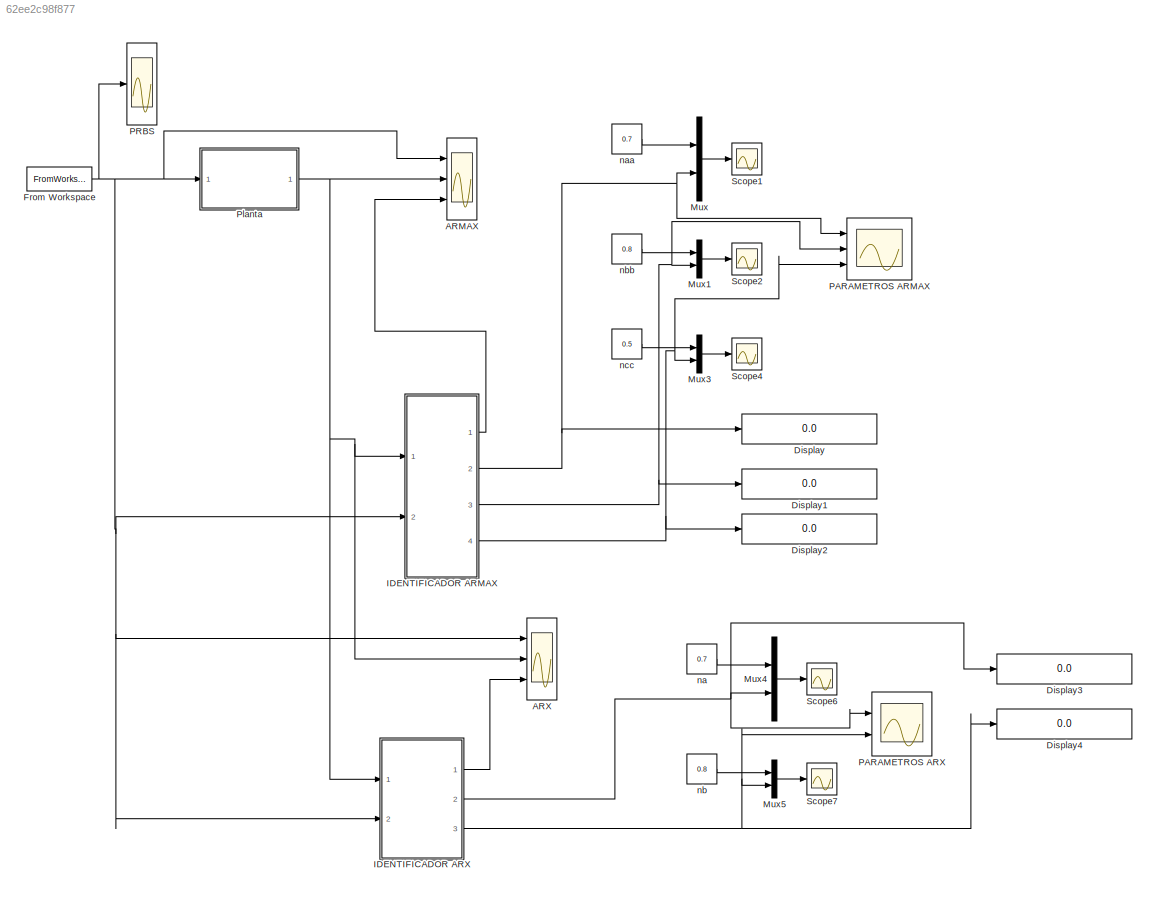
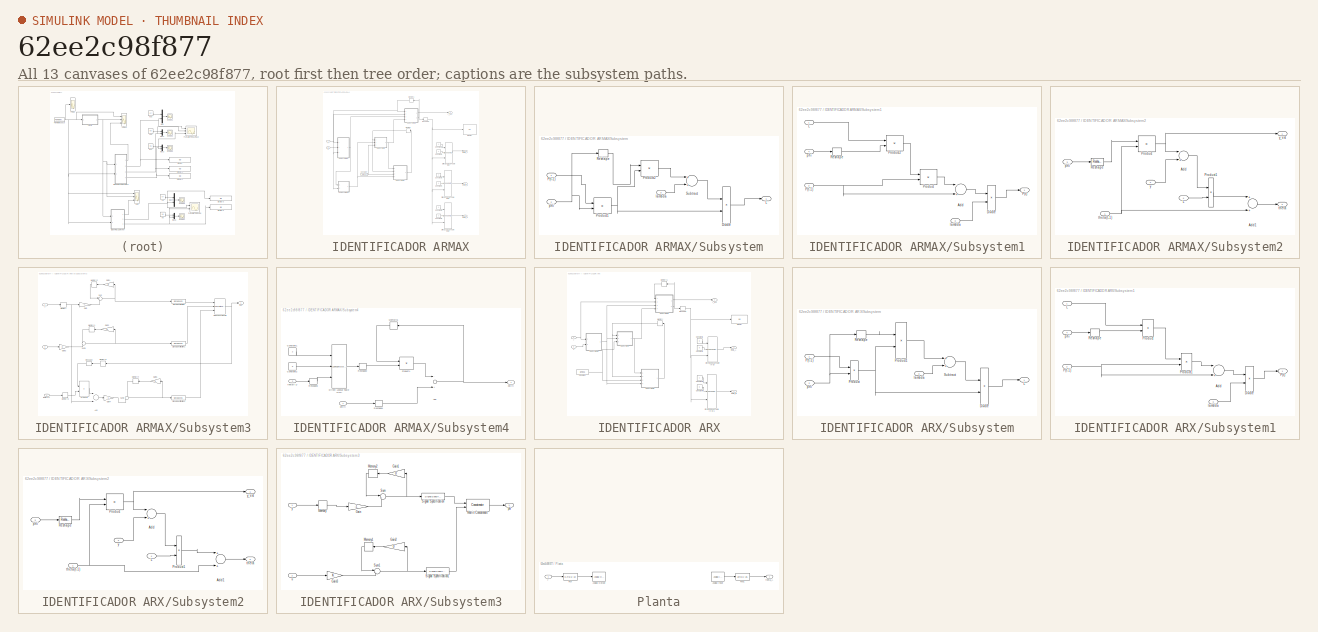
[diagram: thumbnail index - all 13 canvases of the model, root first then tree order]
MODEL slx_62ee2c98f877
KIND model
BLOCK [Scope] ARMAX
  DataFormat = StructureWithTime
  Floating = off
  LimitDataPoints = off
  NumInputPorts = 3
  Ports = [3]
  SampleInput = on
  SampleTime = 0.01
  SaveName = SALIDA_ARMAX
  SaveToWorkspace = on
  ShowLegends = off
  TimeRange = 130
  YMax = 20~70~75
  YMin = 20~42.5~45
BLOCK [Scope] ARX
  DataFormat = StructureWithTime
  Floating = off
  LimitDataPoints = off
  NumInputPorts = 3
  Ports = [3]
  SampleInput = on
  SampleTime = 0.01
  SaveName = SALIDA_ARX
  SaveToWorkspace = on
  ShowLegends = off
  YMax = 5~5~5
  YMin = -5~-5~-5
BLOCK [Display] Display
  Decimation = 1
  Lockdown = off
  Ports = [1]
BLOCK [Display] Display1
  Decimation = 1
  Lockdown = off
  Ports = [1]
BLOCK [Display] Display2
  Decimation = 1
  Lockdown = off
  Ports = [1]
BLOCK [Display] Display3
  Decimation = 1
  Lockdown = off
  Ports = [1]
BLOCK [Display] Display4
  Decimation = 1
  Lockdown = off
  Ports = [1]
BLOCK [FromWorkspace] From Workspace
  SampleTime = 0.01
  VariableName = prbs
  ZeroCross = on
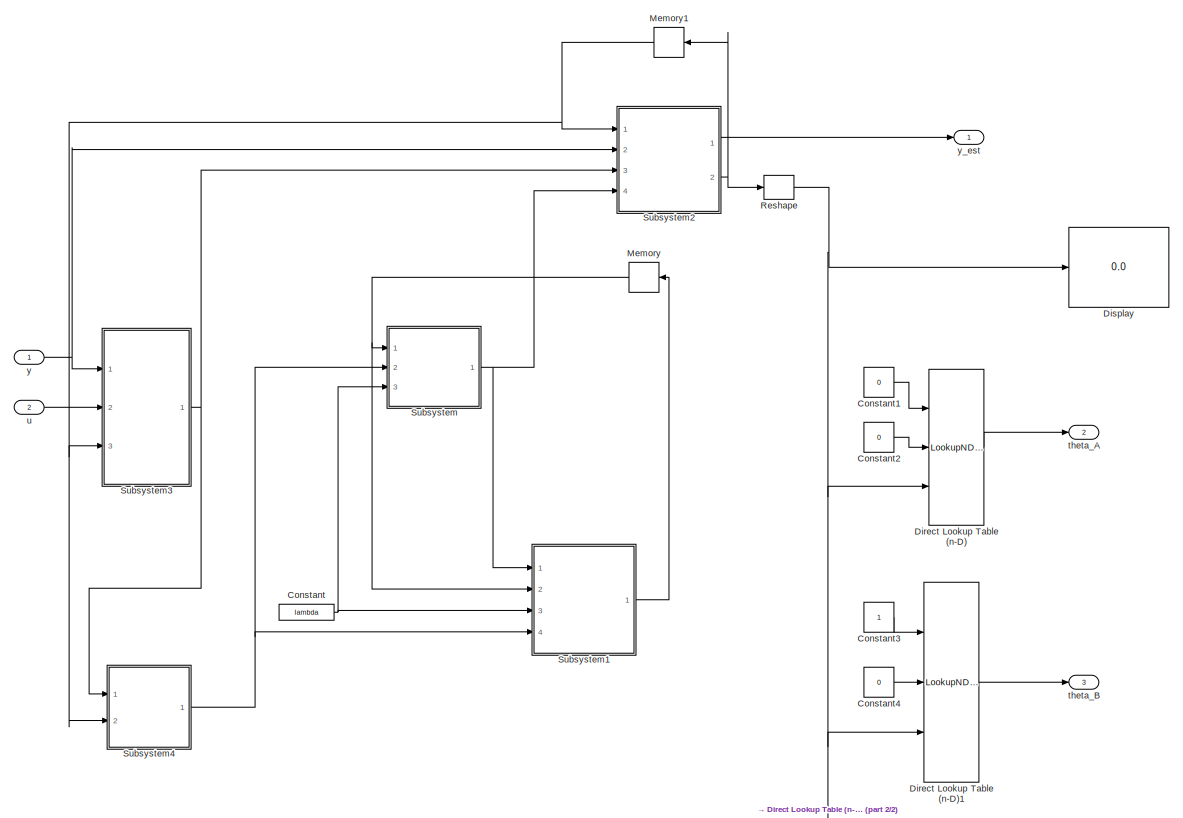
[diagram: IDENTIFICADOR ARMAX - part 1/2, most of the canvas]
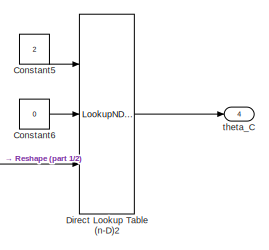
[diagram: IDENTIFICADOR ARMAX - part 2/2, bottom right region]
BLOCK [SubSystem] IDENTIFICADOR ARMAX
  FunctionWithSeparateData = off
  MaskHideContents = off
  MinAlgLoopOccurrences = off
  Opaque = off
  Ports = [2, 4]
  PropExecContextOutsideSubsystem = off
  RTWSystemCode = Auto
  RequestExecContextInheritance = off
BLOCK [Constant] IDENTIFICADOR ARMAX/Constant
  Value = lambda
BLOCK [Constant] IDENTIFICADOR ARMAX/Constant1
  Value = 0
BLOCK [Constant] IDENTIFICADOR ARMAX/Constant2
  Value = 0
BLOCK [Constant] IDENTIFICADOR ARMAX/Constant3
BLOCK [Constant] IDENTIFICADOR ARMAX/Constant4
  Value = 0
BLOCK [Constant] IDENTIFICADOR ARMAX/Constant5
  Value = 2
BLOCK [Constant] IDENTIFICADOR ARMAX/Constant6
  Value = 0
BLOCK [LookupNDDirect] IDENTIFICADOR ARMAX/Direct Lookup Table (n-D)
  DiagnosticForOutOfRangeInput = Error
  Ports = [3, 1]
  SampleTime = 0.01
  Table = [4 5 ;16 19 ]
  TableIsInput = on
BLOCK [LookupNDDirect] IDENTIFICADOR ARMAX/Direct Lookup Table (n-D)1
  DiagnosticForOutOfRangeInput = Error
  Ports = [3, 1]
  SampleTime = 0.01
  Table = [4 5 ;16 19 ]
  TableIsInput = on
BLOCK [LookupNDDirect] IDENTIFICADOR ARMAX/Direct Lookup Table (n-D)2
  DiagnosticForOutOfRangeInput = Error
  Ports = [3, 1]
  SampleTime = 0.01
  Table = [4 5 ;16 19 ]
  TableIsInput = on
BLOCK [Display] IDENTIFICADOR ARMAX/Display
  Decimation = 1
  Lockdown = off
  Ports = [1]
BLOCK [Memory] IDENTIFICADOR ARMAX/Memory
  X0 = 1e6*eye(3)
BLOCK [Memory] IDENTIFICADOR ARMAX/Memory1
BLOCK [Reshape] IDENTIFICADOR ARMAX/Reshape
  OutputDimensionality = Column vector (2-D)
  Ports = [1, 1]
BLOCK [SubSystem] IDENTIFICADOR ARMAX/Subsystem
  FunctionWithSeparateData = off
  MaskHideContents = off
  MinAlgLoopOccurrences = off
  Opaque = off
  Ports = [3, 1]
  PropExecContextOutsideSubsystem = off
  RTWSystemCode = Auto
  RequestExecContextInheritance = off
BLOCK [Product] IDENTIFICADOR ARMAX/Subsystem/Divide
  InputSameDT = off
  Inputs = /*
  OutDataTypeStr = Inherit: Inherit via internal rule
  Ports = [2, 1]
  RndMeth = Floor
  SaturateOnIntegerOverflow = off
BLOCK [Outport] IDENTIFICADOR ARMAX/Subsystem/L
  IconDisplay = Port number
BLOCK [Inport] IDENTIFICADOR ARMAX/Subsystem/P(t-1)
  IconDisplay = Port number
BLOCK [Product] IDENTIFICADOR ARMAX/Subsystem/Product1
  InputSameDT = off
  Multiplication = Matrix(*)
  OutDataTypeStr = Inherit: Inherit via internal rule
  Ports = [2, 1]
  RndMeth = Floor
  SampleTime = 0.01
  SaturateOnIntegerOverflow = off
BLOCK [Product] IDENTIFICADOR ARMAX/Subsystem/Product2
  InputSameDT = off
  Multiplication = Matrix(*)
  OutDataTypeStr = Inherit: Inherit via internal rule
  Ports = [2, 1]
  RndMeth = Floor
  SampleTime = 0.01
  SaturateOnIntegerOverflow = off
BLOCK [Reshape] IDENTIFICADOR ARMAX/Subsystem/Reshape
  OutputDimensionality = Row vector (2-D)
  Ports = [1, 1]
BLOCK [Sum] IDENTIFICADOR ARMAX/Subsystem/Subtract
  InputSameDT = off
  OutDataTypeStr = Inherit: Inherit via internal rule
  Ports = [2, 1]
  SaturateOnIntegerOverflow = off
BLOCK [Inport] IDENTIFICADOR ARMAX/Subsystem/lambda
  IconDisplay = Port number
  Port = 3
BLOCK [Inport] IDENTIFICADOR ARMAX/Subsystem/phi
  IconDisplay = Port number
  Port = 2
BLOCK [SubSystem] IDENTIFICADOR ARMAX/Subsystem1
  FunctionWithSeparateData = off
  MaskHideContents = off
  MinAlgLoopOccurrences = off
  Opaque = off
  Ports = [4, 1]
  PropExecContextOutsideSubsystem = off
  RTWSystemCode = Auto
  RequestExecContextInheritance = off
BLOCK [Sum] IDENTIFICADOR ARMAX/Subsystem1/Add
  InputSameDT = off
  Inputs = -+
  OutDataTypeStr = Inherit: Inherit via internal rule
  Ports = [2, 1]
  SaturateOnIntegerOverflow = off
BLOCK [Product] IDENTIFICADOR ARMAX/Subsystem1/Divide
  InputSameDT = off
  Inputs = */
  OutDataTypeStr = Inherit: Inherit via internal rule
  Ports = [2, 1]
  RndMeth = Floor
  SaturateOnIntegerOverflow = off
BLOCK [Inport] IDENTIFICADOR ARMAX/Subsystem1/L
  IconDisplay = Port number
BLOCK [Outport] IDENTIFICADOR ARMAX/Subsystem1/P(t)
  IconDisplay = Port number
BLOCK [Inport] IDENTIFICADOR ARMAX/Subsystem1/P(t-1)
  IconDisplay = Port number
  Port = 2
BLOCK [Product] IDENTIFICADOR ARMAX/Subsystem1/Product
  InputSameDT = off
  Multiplication = Matrix(*)
  OutDataTypeStr = Inherit: Inherit via internal rule
  Ports = [2, 1]
  RndMeth = Floor
  SampleTime = 0.01
  SaturateOnIntegerOverflow = off
BLOCK [Product] IDENTIFICADOR ARMAX/Subsystem1/Product2
  InputSameDT = off
  Multiplication = Matrix(*)
  OutDataTypeStr = Inherit: Inherit via internal rule
  Ports = [2, 1]
  RndMeth = Floor
  SampleTime = 0.01
  SaturateOnIntegerOverflow = off
BLOCK [Reshape] IDENTIFICADOR ARMAX/Subsystem1/Reshape
  OutputDimensionality = Row vector (2-D)
  Ports = [1, 1]
BLOCK [Inport] IDENTIFICADOR ARMAX/Subsystem1/lambda
  IconDisplay = Port number
  Port = 3
BLOCK [Inport] IDENTIFICADOR ARMAX/Subsystem1/phi
  IconDisplay = Port number
  Port = 4
BLOCK [SubSystem] IDENTIFICADOR ARMAX/Subsystem2
  FunctionWithSeparateData = off
  MaskHideContents = off
  MinAlgLoopOccurrences = off
  Opaque = off
  Ports = [4, 2]
  PropExecContextOutsideSubsystem = off
  RTWSystemCode = Auto
  RequestExecContextInheritance = off
BLOCK [Sum] IDENTIFICADOR ARMAX/Subsystem2/Add
  InputSameDT = off
  Inputs = -+
  OutDataTypeStr = Inherit: Inherit via internal rule
  Ports = [2, 1]
  SaturateOnIntegerOverflow = off
BLOCK [Sum] IDENTIFICADOR ARMAX/Subsystem2/Add1
  InputSameDT = off
  OutDataTypeStr = Inherit: Inherit via internal rule
  Ports = [2, 1]
  SaturateOnIntegerOverflow = off
BLOCK [Inport] IDENTIFICADOR ARMAX/Subsystem2/L
  IconDisplay = Port number
  Port = 4
BLOCK [Product] IDENTIFICADOR ARMAX/Subsystem2/Product
  InputSameDT = off
  Multiplication = Matrix(*)
  OutDataTypeStr = Inherit: Inherit via internal rule
  Ports = [2, 1]
  RndMeth = Floor
  SampleTime = 0.01
  SaturateOnIntegerOverflow = off
BLOCK [Product] IDENTIFICADOR ARMAX/Subsystem2/Product1
  InputSameDT = off
  OutDataTypeStr = Inherit: Inherit via internal rule
  Ports = [2, 1]
  RndMeth = Floor
  SaturateOnIntegerOverflow = off
BLOCK [Reshape] IDENTIFICADOR ARMAX/Subsystem2/Reshape
  OutputDimensionality = Row vector (2-D)
  Ports = [1, 1]
BLOCK [Inport] IDENTIFICADOR ARMAX/Subsystem2/phi
  IconDisplay = Port number
  Port = 3
BLOCK [Outport] IDENTIFICADOR ARMAX/Subsystem2/theta
  IconDisplay = Port number
  Port = 2
BLOCK [Inport] IDENTIFICADOR ARMAX/Subsystem2/theta(t-1)
  IconDisplay = Port number
BLOCK [Inport] IDENTIFICADOR ARMAX/Subsystem2/y
  IconDisplay = Port number
  Port = 2
BLOCK [Outport] IDENTIFICADOR ARMAX/Subsystem2/y_est
  IconDisplay = Port number
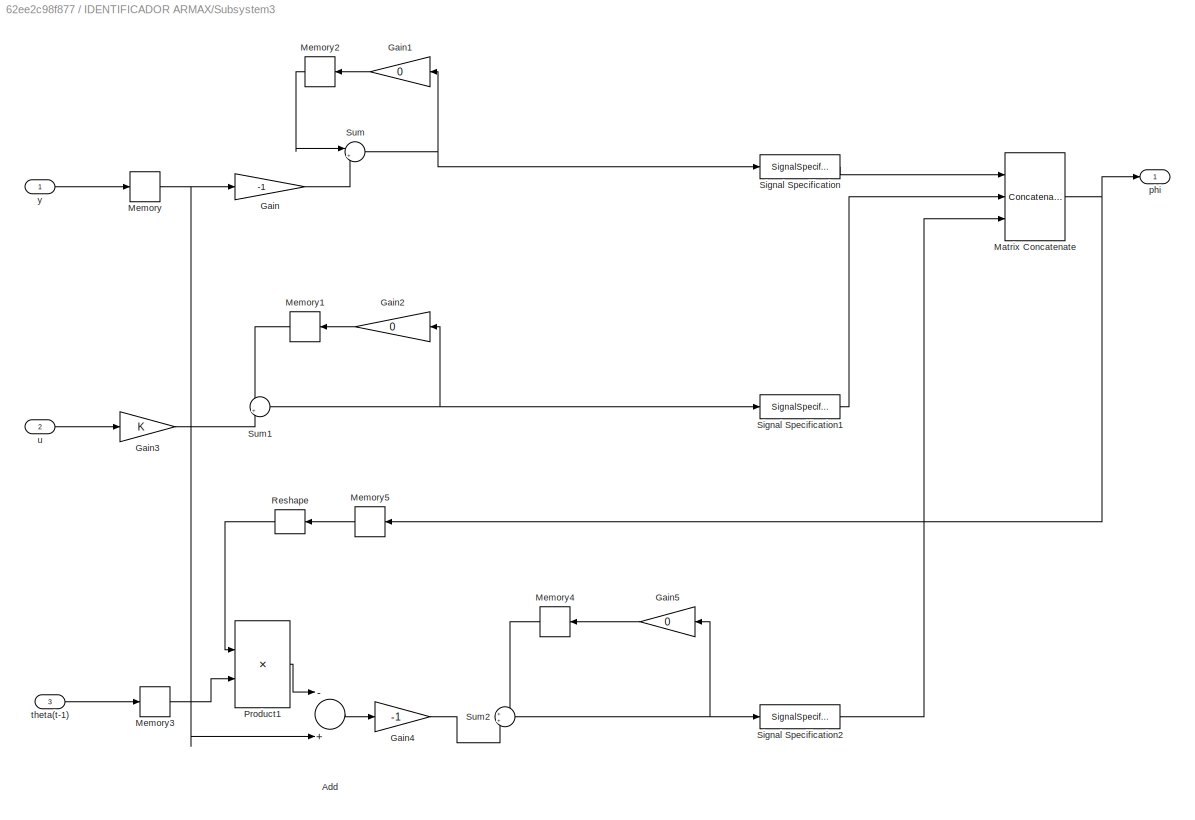
BLOCK [SubSystem] IDENTIFICADOR ARMAX/Subsystem3
  FunctionWithSeparateData = off
  MaskHideContents = off
  MinAlgLoopOccurrences = off
  Opaque = off
  Ports = [3, 1]
  PropExecContextOutsideSubsystem = off
  RTWSystemCode = Auto
  RequestExecContextInheritance = off
BLOCK [Sum] IDENTIFICADOR ARMAX/Subsystem3/Add
  InputSameDT = off
  Inputs = -+
  OutDataTypeStr = Inherit: Inherit via internal rule
  Ports = [2, 1]
  SaturateOnIntegerOverflow = off
BLOCK [Gain] IDENTIFICADOR ARMAX/Subsystem3/Gain
  Gain = -1
  Multiplication = Matrix(K*u)
  OutDataTypeStr = Inherit: Inherit via internal rule
  ParamDataTypeStr = Inherit: Inherit via internal rule
  SaturateOnIntegerOverflow = off
BLOCK [Gain] IDENTIFICADOR ARMAX/Subsystem3/Gain1
  Gain = 0
  Multiplication = Matrix(K*u)
  OutDataTypeStr = Inherit: Inherit via internal rule
  ParamDataTypeStr = Inherit: Inherit via internal rule
  SaturateOnIntegerOverflow = off
BLOCK [Gain] IDENTIFICADOR ARMAX/Subsystem3/Gain2
  Gain = 0
  Multiplication = Matrix(K*u)
  OutDataTypeStr = Inherit: Inherit via internal rule
  ParamDataTypeStr = Inherit: Inherit via internal rule
  SaturateOnIntegerOverflow = off
BLOCK [Gain] IDENTIFICADOR ARMAX/Subsystem3/Gain3
  Multiplication = Matrix(K*u)
  OutDataTypeStr = Inherit: Inherit via internal rule
  ParamDataTypeStr = Inherit: Inherit via internal rule
  SaturateOnIntegerOverflow = off
BLOCK [Gain] IDENTIFICADOR ARMAX/Subsystem3/Gain4
  Gain = -1
  Multiplication = Matrix(K*u)
  OutDataTypeStr = Inherit: Inherit via internal rule
  ParamDataTypeStr = Inherit: Inherit via internal rule
  SaturateOnIntegerOverflow = off
BLOCK [Gain] IDENTIFICADOR ARMAX/Subsystem3/Gain5
  Gain = 0
  Multiplication = Matrix(K*u)
  OutDataTypeStr = Inherit: Inherit via internal rule
  ParamDataTypeStr = Inherit: Inherit via internal rule
  SaturateOnIntegerOverflow = off
BLOCK [Concatenate] IDENTIFICADOR ARMAX/Subsystem3/Matrix Concatenate
  Mode = Multidimensional array
  NumInputs = 3
  Ports = [3, 1]
BLOCK [Memory] IDENTIFICADOR ARMAX/Subsystem3/Memory
BLOCK [Memory] IDENTIFICADOR ARMAX/Subsystem3/Memory1
BLOCK [Memory] IDENTIFICADOR ARMAX/Subsystem3/Memory2
BLOCK [Memory] IDENTIFICADOR ARMAX/Subsystem3/Memory3
BLOCK [Memory] IDENTIFICADOR ARMAX/Subsystem3/Memory4
BLOCK [Memory] IDENTIFICADOR ARMAX/Subsystem3/Memory5
BLOCK [Product] IDENTIFICADOR ARMAX/Subsystem3/Product1
  InputSameDT = off
  Multiplication = Matrix(*)
  OutDataTypeStr = Inherit: Inherit via internal rule
  Ports = [2, 1]
  RndMeth = Floor
  SampleTime = 0.01
  SaturateOnIntegerOverflow = off
BLOCK [Reshape] IDENTIFICADOR ARMAX/Subsystem3/Reshape
  OutputDimensionality = Row vector (2-D)
  Ports = [1, 1]
BLOCK [SignalSpecification] IDENTIFICADOR ARMAX/Subsystem3/Signal Specification
  Dimensions = [1 1]
BLOCK [SignalSpecification] IDENTIFICADOR ARMAX/Subsystem3/Signal Specification1
  Dimensions = [1 1]
BLOCK [SignalSpecification] IDENTIFICADOR ARMAX/Subsystem3/Signal Specification2
  Dimensions = [1 1]
BLOCK [Sum] IDENTIFICADOR ARMAX/Subsystem3/Sum
  IconShape = round
  InputSameDT = off
  Inputs = |++
  OutDataTypeStr = Inherit: Inherit via internal rule
  Ports = [2, 1]
  SaturateOnIntegerOverflow = off
BLOCK [Sum] IDENTIFICADOR ARMAX/Subsystem3/Sum1
  IconShape = round
  InputSameDT = off
  Inputs = |++
  OutDataTypeStr = Inherit: Inherit via internal rule
  Ports = [2, 1]
  SaturateOnIntegerOverflow = off
BLOCK [Sum] IDENTIFICADOR ARMAX/Subsystem3/Sum2
  IconShape = round
  InputSameDT = off
  OutDataTypeStr = Inherit: Inherit via internal rule
  Ports = [2, 1]
  SaturateOnIntegerOverflow = off
BLOCK [Outport] IDENTIFICADOR ARMAX/Subsystem3/phi
  IconDisplay = Port number
BLOCK [Inport] IDENTIFICADOR ARMAX/Subsystem3/theta(t-1)
  IconDisplay = Port number
  Port = 3
BLOCK [Inport] IDENTIFICADOR ARMAX/Subsystem3/u
  IconDisplay = Port number
  Port = 2
BLOCK [Inport] IDENTIFICADOR ARMAX/Subsystem3/y
  IconDisplay = Port number
BLOCK [SubSystem] IDENTIFICADOR ARMAX/Subsystem4
  FunctionWithSeparateData = off
  MaskHideContents = off
  MinAlgLoopOccurrences = off
  Opaque = off
  Ports = [2, 1]
  PropExecContextOutsideSubsystem = off
  RTWSystemCode = Auto
  RequestExecContextInheritance = off
BLOCK [Sum] IDENTIFICADOR ARMAX/Subsystem4/Add
  InputSameDT = off
  Inputs = -+
  OutDataTypeStr = Inherit: Inherit via internal rule
  Ports = [2, 1]
  SaturateOnIntegerOverflow = off
BLOCK [Constant] IDENTIFICADOR ARMAX/Subsystem4/Constant1
  Value = 2
BLOCK [Constant] IDENTIFICADOR ARMAX/Subsystem4/Constant2
  Value = 0
BLOCK [LookupNDDirect] IDENTIFICADOR ARMAX/Subsystem4/Direct Lookup Table (n-D)
  DiagnosticForOutOfRangeInput = Error
  Ports = [3, 1]
  SampleTime = 0.01
  Table = [4 5 ;16 19 ]
  TableIsInput = on
BLOCK [Memory] IDENTIFICADOR ARMAX/Subsystem4/Memory5
BLOCK [Product] IDENTIFICADOR ARMAX/Subsystem4/Product1
  InputSameDT = off
  Multiplication = Matrix(*)
  OutDataTypeStr = Inherit: Inherit via internal rule
  Ports = [2, 1]
  RndMeth = Floor
  SampleTime = 0.01
  SaturateOnIntegerOverflow = off
BLOCK [Reshape] IDENTIFICADOR ARMAX/Subsystem4/Reshape1
  OutputDimensionality = Column vector (2-D)
  Ports = [1, 1]
BLOCK [Reshape] IDENTIFICADOR ARMAX/Subsystem4/Reshape2
  OutputDimensionality = Column vector (2-D)
  Ports = [1, 1]
BLOCK [Reshape] IDENTIFICADOR ARMAX/Subsystem4/Reshape3
  OutputDimensionality = Column vector (2-D)
  Ports = [1, 1]
BLOCK [Inport] IDENTIFICADOR ARMAX/Subsystem4/phi(t)
  IconDisplay = Port number
BLOCK [Outport] IDENTIFICADOR ARMAX/Subsystem4/psi(t)
  IconDisplay = Port number
BLOCK [Inport] IDENTIFICADOR ARMAX/Subsystem4/theta(t-1)
  IconDisplay = Port number
  Port = 2
BLOCK [Outport] IDENTIFICADOR ARMAX/theta_A
  IconDisplay = Port number
  Port = 2
BLOCK [Outport] IDENTIFICADOR ARMAX/theta_B
  IconDisplay = Port number
  Port = 3
BLOCK [Outport] IDENTIFICADOR ARMAX/theta_C
  IconDisplay = Port number
  Port = 4
BLOCK [Inport] IDENTIFICADOR ARMAX/u
  IconDisplay = Port number
  Port = 2
BLOCK [Inport] IDENTIFICADOR ARMAX/y
  IconDisplay = Port number
BLOCK [Outport] IDENTIFICADOR ARMAX/y_est
  IconDisplay = Port number
BLOCK [SubSystem] IDENTIFICADOR ARX
  FunctionWithSeparateData = off
  MaskHideContents = off
  MinAlgLoopOccurrences = off
  Opaque = off
  Ports = [2, 3]
  PropExecContextOutsideSubsystem = off
  RTWSystemCode = Auto
  RequestExecContextInheritance = off
BLOCK [Constant] IDENTIFICADOR ARX/Constant
  Value = lambda
BLOCK [Constant] IDENTIFICADOR ARX/Constant1
  Value = 0
BLOCK [Constant] IDENTIFICADOR ARX/Constant2
  Value = 0
BLOCK [Constant] IDENTIFICADOR ARX/Constant3
BLOCK [Constant] IDENTIFICADOR ARX/Constant4
  Value = 0
BLOCK [LookupNDDirect] IDENTIFICADOR ARX/Direct Lookup Table (n-D)
  DiagnosticForOutOfRangeInput = Error
  Ports = [3, 1]
  Table = [4 5 ;16 19 ]
  TableIsInput = on
BLOCK [LookupNDDirect] IDENTIFICADOR ARX/Direct Lookup Table (n-D)1
  DiagnosticForOutOfRangeInput = Error
  Ports = [3, 1]
  Table = [4 5 ;16 19 ]
  TableIsInput = on
BLOCK [Display] IDENTIFICADOR ARX/Display
  Decimation = 1
  Lockdown = off
  Ports = [1]
BLOCK [Memory] IDENTIFICADOR ARX/Memory
  X0 = 1e6*eye(2)
BLOCK [Memory] IDENTIFICADOR ARX/Memory1
BLOCK [Reshape] IDENTIFICADOR ARX/Reshape
  OutputDimensionality = Column vector (2-D)
  Ports = [1, 1]
BLOCK [SubSystem] IDENTIFICADOR ARX/Subsystem
  FunctionWithSeparateData = off
  MaskHideContents = off
  MinAlgLoopOccurrences = off
  Opaque = off
  Ports = [3, 1]
  PropExecContextOutsideSubsystem = off
  RTWSystemCode = Auto
  RequestExecContextInheritance = off
BLOCK [Product] IDENTIFICADOR ARX/Subsystem/Divide
  InputSameDT = off
  Inputs = /*
  OutDataTypeStr = Inherit: Inherit via internal rule
  Ports = [2, 1]
  RndMeth = Floor
  SaturateOnIntegerOverflow = off
BLOCK [Outport] IDENTIFICADOR ARX/Subsystem/L
  IconDisplay = Port number
BLOCK [Inport] IDENTIFICADOR ARX/Subsystem/P(t-1)
  IconDisplay = Port number
BLOCK [Product] IDENTIFICADOR ARX/Subsystem/Product
  InputSameDT = off
  Multiplication = Matrix(*)
  OutDataTypeStr = Inherit: Inherit via internal rule
  Ports = [2, 1]
  RndMeth = Floor
  SaturateOnIntegerOverflow = off
BLOCK [Product] IDENTIFICADOR ARX/Subsystem/Product1
  InputSameDT = off
  Multiplication = Matrix(*)
  OutDataTypeStr = Inherit: Inherit via internal rule
  Ports = [2, 1]
  RndMeth = Floor
  SaturateOnIntegerOverflow = off
BLOCK [Reshape] IDENTIFICADOR ARX/Subsystem/Reshape
  OutputDimensionality = Row vector (2-D)
  Ports = [1, 1]
BLOCK [Sum] IDENTIFICADOR ARX/Subsystem/Subtract
  InputSameDT = off
  OutDataTypeStr = Inherit: Inherit via internal rule
  Ports = [2, 1]
  SaturateOnIntegerOverflow = off
BLOCK [Inport] IDENTIFICADOR ARX/Subsystem/lambda
  IconDisplay = Port number
  Port = 3
BLOCK [Inport] IDENTIFICADOR ARX/Subsystem/phi
  IconDisplay = Port number
  Port = 2
BLOCK [SubSystem] IDENTIFICADOR ARX/Subsystem1
  FunctionWithSeparateData = off
  MaskHideContents = off
  MinAlgLoopOccurrences = off
  Opaque = off
  Ports = [4, 1]
  PropExecContextOutsideSubsystem = off
  RTWSystemCode = Auto
  RequestExecContextInheritance = off
BLOCK [Sum] IDENTIFICADOR ARX/Subsystem1/Add
  InputSameDT = off
  Inputs = -+
  OutDataTypeStr = Inherit: Inherit via internal rule
  Ports = [2, 1]
  SaturateOnIntegerOverflow = off
BLOCK [Product] IDENTIFICADOR ARX/Subsystem1/Divide
  InputSameDT = off
  Inputs = */
  OutDataTypeStr = Inherit: Inherit via internal rule
  Ports = [2, 1]
  RndMeth = Floor
  SaturateOnIntegerOverflow = off
BLOCK [Inport] IDENTIFICADOR ARX/Subsystem1/L
  IconDisplay = Port number
BLOCK [Outport] IDENTIFICADOR ARX/Subsystem1/P(t)
  IconDisplay = Port number
BLOCK [Inport] IDENTIFICADOR ARX/Subsystem1/P(t-1)
  IconDisplay = Port number
  Port = 2
BLOCK [Product] IDENTIFICADOR ARX/Subsystem1/Product
  InputSameDT = off
  Multiplication = Matrix(*)
  OutDataTypeStr = Inherit: Inherit via internal rule
  Ports = [2, 1]
  RndMeth = Floor
  SaturateOnIntegerOverflow = off
BLOCK [Product] IDENTIFICADOR ARX/Subsystem1/Product1
  InputSameDT = off
  Multiplication = Matrix(*)
  OutDataTypeStr = Inherit: Inherit via internal rule
  Ports = [2, 1]
  RndMeth = Floor
  SaturateOnIntegerOverflow = off
BLOCK [Reshape] IDENTIFICADOR ARX/Subsystem1/Reshape
  OutputDimensionality = Row vector (2-D)
  Ports = [1, 1]
BLOCK [Inport] IDENTIFICADOR ARX/Subsystem1/lambda
  IconDisplay = Port number
  Port = 3
BLOCK [Inport] IDENTIFICADOR ARX/Subsystem1/phi
  IconDisplay = Port number
  Port = 4
BLOCK [SubSystem] IDENTIFICADOR ARX/Subsystem2
  FunctionWithSeparateData = off
  MaskHideContents = off
  MinAlgLoopOccurrences = off
  Opaque = off
  Ports = [4, 2]
  PropExecContextOutsideSubsystem = off
  RTWSystemCode = Auto
  RequestExecContextInheritance = off
BLOCK [Sum] IDENTIFICADOR ARX/Subsystem2/Add
  InputSameDT = off
  Inputs = -+
  OutDataTypeStr = Inherit: Inherit via internal rule
  Ports = [2, 1]
  SaturateOnIntegerOverflow = off
BLOCK [Sum] IDENTIFICADOR ARX/Subsystem2/Add1
  InputSameDT = off
  OutDataTypeStr = Inherit: Inherit via internal rule
  Ports = [2, 1]
  SaturateOnIntegerOverflow = off
BLOCK [Inport] IDENTIFICADOR ARX/Subsystem2/L
  IconDisplay = Port number
  Port = 4
BLOCK [Product] IDENTIFICADOR ARX/Subsystem2/Product
  InputSameDT = off
  Multiplication = Matrix(*)
  OutDataTypeStr = Inherit: Inherit via internal rule
  Ports = [2, 1]
  RndMeth = Floor
  SaturateOnIntegerOverflow = off
BLOCK [Product] IDENTIFICADOR ARX/Subsystem2/Product1
  InputSameDT = off
  OutDataTypeStr = Inherit: Inherit via internal rule
  Ports = [2, 1]
  RndMeth = Floor
  SaturateOnIntegerOverflow = off
BLOCK [Reshape] IDENTIFICADOR ARX/Subsystem2/Reshape
  OutputDimensionality = Row vector (2-D)
  Ports = [1, 1]
BLOCK [Inport] IDENTIFICADOR ARX/Subsystem2/phi
  IconDisplay = Port number
  Port = 3
BLOCK [Outport] IDENTIFICADOR ARX/Subsystem2/theta
  IconDisplay = Port number
  Port = 2
BLOCK [Inport] IDENTIFICADOR ARX/Subsystem2/theta(t-1)
  IconDisplay = Port number
BLOCK [Inport] IDENTIFICADOR ARX/Subsystem2/y
  IconDisplay = Port number
  Port = 2
BLOCK [Outport] IDENTIFICADOR ARX/Subsystem2/y_est
  IconDisplay = Port number
BLOCK [SubSystem] IDENTIFICADOR ARX/Subsystem3
  FunctionWithSeparateData = off
  MaskHideContents = off
  MinAlgLoopOccurrences = off
  Opaque = off
  Ports = [2, 1]
  PropExecContextOutsideSubsystem = off
  RTWSystemCode = Auto
  RequestExecContextInheritance = off
BLOCK [Gain] IDENTIFICADOR ARX/Subsystem3/Gain
  Gain = -1
  Multiplication = Matrix(K*u)
  OutDataTypeStr = Inherit: Inherit via internal rule
  ParamDataTypeStr = Inherit: Inherit via internal rule
  SaturateOnIntegerOverflow = off
BLOCK [Gain] IDENTIFICADOR ARX/Subsystem3/Gain1
  Gain = 0
  Multiplication = Matrix(K*u)
  OutDataTypeStr = Inherit: Inherit via internal rule
  ParamDataTypeStr = Inherit: Inherit via internal rule
  SaturateOnIntegerOverflow = off
BLOCK [Gain] IDENTIFICADOR ARX/Subsystem3/Gain2
  Gain = 0
  Multiplication = Matrix(K*u)
  OutDataTypeStr = Inherit: Inherit via internal rule
  ParamDataTypeStr = Inherit: Inherit via internal rule
  SaturateOnIntegerOverflow = off
BLOCK [Gain] IDENTIFICADOR ARX/Subsystem3/Gain3
  Multiplication = Matrix(K*u)
  OutDataTypeStr = Inherit: Inherit via internal rule
  ParamDataTypeStr = Inherit: Inherit via internal rule
  SaturateOnIntegerOverflow = off
BLOCK [Concatenate] IDENTIFICADOR ARX/Subsystem3/Matrix Concatenate
  Mode = Multidimensional array
  Ports = [2, 1]
BLOCK [Memory] IDENTIFICADOR ARX/Subsystem3/Memory
BLOCK [Memory] IDENTIFICADOR ARX/Subsystem3/Memory1
BLOCK [Memory] IDENTIFICADOR ARX/Subsystem3/Memory2
BLOCK [SignalSpecification] IDENTIFICADOR ARX/Subsystem3/Signal Specification
  Dimensions = [1 1]
BLOCK [SignalSpecification] IDENTIFICADOR ARX/Subsystem3/Signal Specification1
  Dimensions = [1 1]
BLOCK [Sum] IDENTIFICADOR ARX/Subsystem3/Sum
  IconShape = round
  InputSameDT = off
  Inputs = |++
  OutDataTypeStr = Inherit: Inherit via internal rule
  Ports = [2, 1]
  SaturateOnIntegerOverflow = off
BLOCK [Sum] IDENTIFICADOR ARX/Subsystem3/Sum1
  IconShape = round
  InputSameDT = off
  Inputs = |++
  OutDataTypeStr = Inherit: Inherit via internal rule
  Ports = [2, 1]
  SaturateOnIntegerOverflow = off
BLOCK [Outport] IDENTIFICADOR ARX/Subsystem3/phi
  IconDisplay = Port number
BLOCK [Inport] IDENTIFICADOR ARX/Subsystem3/u
  IconDisplay = Port number
  Port = 2
BLOCK [Inport] IDENTIFICADOR ARX/Subsystem3/y
  IconDisplay = Port number
BLOCK [Outport] IDENTIFICADOR ARX/theta_A
  IconDisplay = Port number
  Port = 2
BLOCK [Outport] IDENTIFICADOR ARX/theta_B
  IconDisplay = Port number
  Port = 3
BLOCK [Inport] IDENTIFICADOR ARX/u
  IconDisplay = Port number
  Port = 2
BLOCK [Inport] IDENTIFICADOR ARX/y
  IconDisplay = Port number
BLOCK [Outport] IDENTIFICADOR ARX/y_est
  IconDisplay = Port number
BLOCK [Mux] Mux
  DisplayOption = bar
  Inputs = 2
  Ports = [2, 1]
BLOCK [Mux] Mux1
  DisplayOption = bar
  Inputs = 2
  Ports = [2, 1]
BLOCK [Mux] Mux3
  DisplayOption = bar
  Inputs = 2
  Ports = [2, 1]
BLOCK [Mux] Mux4
  DisplayOption = bar
  Inputs = 2
  Ports = [2, 1]
BLOCK [Mux] Mux5
  DisplayOption = bar
  Inputs = 2
  Ports = [2, 1]
BLOCK [Scope] PARAMETROS ARMAX
  DataFormat = StructureWithTime
  Floating = off
  LimitDataPoints = off
  NumInputPorts = 3
  Ports = [3]
  SampleInput = on
  SampleTime = 0.01
  SaveName = PARAMETROS_ARMAX
  SaveToWorkspace = on
  ShowLegends = off
  TimeRange = 130
  YMax = -0.99475~0.00375~0.035
  YMin = -0.99925~0.00075~0.005
BLOCK [Scope] PARAMETROS ARX
  DataFormat = StructureWithTime
  Floating = off
  LimitDataPoints = off
  NumInputPorts = 2
  Ports = [2]
  SampleInput = on
  SampleTime = 0.01
  SaveName = PARAMETROS_ARX
  SaveToWorkspace = on
  ShowLegends = off
  TimeRange = 600
  YMax = 0.8~5
  YMin = -0.8~-5
BLOCK [Scope] PRBS
  Floating = off
  LimitDataPoints = off
  NumInputPorts = 1
  Ports = [1]
  SampleInput = on
  SampleTime = 0.01
  SaveName = ScopeData3
  ShowLegends = off
BLOCK [SubSystem] Planta
  FunctionWithSeparateData = off
  MaskHideContents = off
  MinAlgLoopOccurrences = off
  Opaque = off
  Ports = [1, 1]
  PropExecContextOutsideSubsystem = off
  RTWSystemCode = Auto
  RequestExecContextInheritance = off
BLOCK [Reference] Planta/Analog Input  REF=rtwinlib/Analog Input
  AttributesFormatString = National Instruments\nPCI-6229 [auto]
  Channels = 1
  DataType = 1
  DrvAddress = 4294967295
  DrvName = National_Instruments/PCI-6229
  DrvOptions = [0 0 0 0 0]
  MaxMissedTicks = 10
  Ports = [0, 1]
  RangeMode = 1
  SampleTime = 0.1
  ShowMissedTicks = off
  SourceBlock = rtwinlib/Analog Input
  SourceType = RTWin Analog Input
  VoltRange = 1
  YieldWhenWaiting = off
BLOCK [Reference] Planta/Analog Output  REF=rtwinlib/Analog Output
  AttributesFormatString = National Instruments\nPCI-6229 [auto]
  Channels = 1
  DrvAddress = 4294967295
  DrvName = National_Instruments/PCI-6229
  DrvOptions = [0 0 0 0 0]
  FinalValue = []
  InitialValue = []
  MaxMissedTicks = 10
  Ports = [1]
  RangeMode = 1
  SampleTime = 0.1
  ShowMissedTicks = off
  SourceBlock = rtwinlib/Analog Output
  SourceType = RTWin Analog Output
  VoltRange = 1
  YieldWhenWaiting = off
BLOCK [Fcn] Planta/Fcn
  Expr = 0.2*u(1)-10
BLOCK [Fcn] Planta/Fcn1
  Expr = 25*u(1)-25
BLOCK [Outport] Planta/theta_A
  IconDisplay = Port number
BLOCK [Inport] Planta/y
  IconDisplay = Port number
BLOCK [Scope] Scope1
  Floating = off
  LimitDataPoints = off
  NumInputPorts = 1
  Ports = [1]
  SampleInput = on
  SampleTime = 0.01
  SaveName = ScopeData1
  ShowLegends = off
  TimeRange = 600
  YMax = 0.8
  YMin = -0.8
BLOCK [Scope] Scope2
  Floating = off
  NumInputPorts = 1
  Ports = [1]
  SampleInput = on
  SampleTime = 0.01
  SaveName = ScopeData2
  ShowLegends = off
BLOCK [Scope] Scope4
  Floating = off
  NumInputPorts = 1
  Ports = [1]
  SampleInput = on
  SampleTime = 0.01
  SaveName = ScopeData4
  ShowLegends = off
BLOCK [Scope] Scope6
  Floating = off
  LimitDataPoints = off
  NumInputPorts = 1
  Ports = [1]
  SampleInput = on
  SampleTime = 0.01
  SaveName = ScopeData6
  ShowLegends = off
  TimeRange = 600
  YMax = 0.8
  YMin = -0.8
BLOCK [Scope] Scope7
  Floating = off
  NumInputPorts = 1
  Ports = [1]
  SampleInput = on
  SampleTime = 0.01
  SaveName = ScopeData7
  ShowLegends = off
BLOCK [Constant] na
  Value = 0.7
BLOCK [Constant] naa 
  Value = 0.7
BLOCK [Constant] nb
  Value = 0.8
BLOCK [Constant] nbb
  Value = 0.8
BLOCK [Constant] ncc
  Value = 0.5
NET From Workspace:1 -> ARMAX:1, ARX:1, IDENTIFICADOR ARMAX:2, IDENTIFICADOR ARX:2, PRBS:1, Planta:1
LINE IDENTIFICADOR ARMAX/Constant1:1 -> IDENTIFICADOR ARMAX/Direct Lookup Table (n-D):1
LINE IDENTIFICADOR ARMAX/Constant2:1 -> IDENTIFICADOR ARMAX/Direct Lookup Table (n-D):2
LINE IDENTIFICADOR ARMAX/Constant3:1 -> IDENTIFICADOR ARMAX/Direct Lookup Table (n-D)1:1
LINE IDENTIFICADOR ARMAX/Constant4:1 -> IDENTIFICADOR ARMAX/Direct Lookup Table (n-D)1:2
LINE IDENTIFICADOR ARMAX/Constant5:1 -> IDENTIFICADOR ARMAX/Direct Lookup Table (n-D)2:1
LINE IDENTIFICADOR ARMAX/Constant6:1 -> IDENTIFICADOR ARMAX/Direct Lookup Table (n-D)2:2
NET IDENTIFICADOR ARMAX/Constant:1 -> IDENTIFICADOR ARMAX/Subsystem1:3, IDENTIFICADOR ARMAX/Subsystem:3
LINE IDENTIFICADOR ARMAX/Direct Lookup Table (n-D)1:1 -> IDENTIFICADOR ARMAX/theta_B:1
LINE IDENTIFICADOR ARMAX/Direct Lookup Table (n-D)2:1 -> IDENTIFICADOR ARMAX/theta_C:1
LINE IDENTIFICADOR ARMAX/Direct Lookup Table (n-D):1 -> IDENTIFICADOR ARMAX/theta_A:1
NET IDENTIFICADOR ARMAX/Memory1:1 -> IDENTIFICADOR ARMAX/Subsystem2:1, IDENTIFICADOR ARMAX/Subsystem3:3, IDENTIFICADOR ARMAX/Subsystem4:2
NET IDENTIFICADOR ARMAX/Memory:1 -> IDENTIFICADOR ARMAX/Subsystem1:2, IDENTIFICADOR ARMAX/Subsystem:1
NET IDENTIFICADOR ARMAX/Reshape:1 -> IDENTIFICADOR ARMAX/Direct Lookup Table (n-D)1:3, IDENTIFICADOR ARMAX/Direct Lookup Table (n-D)2:3, IDENTIFICADOR ARMAX/Direct Lookup Table (n-D):3, IDENTIFICADOR ARMAX/Display:1
LINE IDENTIFICADOR ARMAX/Subsystem/Divide:1 -> IDENTIFICADOR ARMAX/Subsystem/L:1
LINE IDENTIFICADOR ARMAX/Subsystem/P(t-1):1 -> IDENTIFICADOR ARMAX/Subsystem/Product1:1
NET IDENTIFICADOR ARMAX/Subsystem/Product1:1 -> IDENTIFICADOR ARMAX/Subsystem/Divide:2, IDENTIFICADOR ARMAX/Subsystem/Product2:2
LINE IDENTIFICADOR ARMAX/Subsystem/Product2:1 -> IDENTIFICADOR ARMAX/Subsystem/Subtract:1
LINE IDENTIFICADOR ARMAX/Subsystem/Reshape:1 -> IDENTIFICADOR ARMAX/Subsystem/Product2:1
LINE IDENTIFICADOR ARMAX/Subsystem/Subtract:1 -> IDENTIFICADOR ARMAX/Subsystem/Divide:1
LINE IDENTIFICADOR ARMAX/Subsystem/lambda:1 -> IDENTIFICADOR ARMAX/Subsystem/Subtract:2
NET IDENTIFICADOR ARMAX/Subsystem/phi:1 -> IDENTIFICADOR ARMAX/Subsystem/Product1:2, IDENTIFICADOR ARMAX/Subsystem/Reshape:1
LINE IDENTIFICADOR ARMAX/Subsystem1/Add:1 -> IDENTIFICADOR ARMAX/Subsystem1/Divide:1
LINE IDENTIFICADOR ARMAX/Subsystem1/Divide:1 -> IDENTIFICADOR ARMAX/Subsystem1/P(t):1
LINE IDENTIFICADOR ARMAX/Subsystem1/L:1 -> IDENTIFICADOR ARMAX/Subsystem1/Product2:1
NET IDENTIFICADOR ARMAX/Subsystem1/P(t-1):1 -> IDENTIFICADOR ARMAX/Subsystem1/Add:2, IDENTIFICADOR ARMAX/Subsystem1/Product:2
LINE IDENTIFICADOR ARMAX/Subsystem1/Product2:1 -> IDENTIFICADOR ARMAX/Subsystem1/Product:1
LINE IDENTIFICADOR ARMAX/Subsystem1/Product:1 -> IDENTIFICADOR ARMAX/Subsystem1/Add:1
LINE IDENTIFICADOR ARMAX/Subsystem1/Reshape:1 -> IDENTIFICADOR ARMAX/Subsystem1/Product2:2
LINE IDENTIFICADOR ARMAX/Subsystem1/lambda:1 -> IDENTIFICADOR ARMAX/Subsystem1/Divide:2
LINE IDENTIFICADOR ARMAX/Subsystem1/phi:1 -> IDENTIFICADOR ARMAX/Subsystem1/Reshape:1
LINE IDENTIFICADOR ARMAX/Subsystem1:1 -> IDENTIFICADOR ARMAX/Memory:1
LINE IDENTIFICADOR ARMAX/Subsystem2/Add1:1 -> IDENTIFICADOR ARMAX/Subsystem2/theta:1
LINE IDENTIFICADOR ARMAX/Subsystem2/Add:1 -> IDENTIFICADOR ARMAX/Subsystem2/Product1:1
LINE IDENTIFICADOR ARMAX/Subsystem2/L:1 -> IDENTIFICADOR ARMAX/Subsystem2/Product1:2
LINE IDENTIFICADOR ARMAX/Subsystem2/Product1:1 -> IDENTIFICADOR ARMAX/Subsystem2/Add1:1
NET IDENTIFICADOR ARMAX/Subsystem2/Product:1 -> IDENTIFICADOR ARMAX/Subsystem2/Add:1, IDENTIFICADOR ARMAX/Subsystem2/y_est:1
LINE IDENTIFICADOR ARMAX/Subsystem2/Reshape:1 -> IDENTIFICADOR ARMAX/Subsystem2/Product:1
LINE IDENTIFICADOR ARMAX/Subsystem2/phi:1 -> IDENTIFICADOR ARMAX/Subsystem2/Reshape:1
NET IDENTIFICADOR ARMAX/Subsystem2/theta(t-1):1 -> IDENTIFICADOR ARMAX/Subsystem2/Add1:2, IDENTIFICADOR ARMAX/Subsystem2/Product:2
LINE IDENTIFICADOR ARMAX/Subsystem2/y:1 -> IDENTIFICADOR ARMAX/Subsystem2/Add:2
LINE IDENTIFICADOR ARMAX/Subsystem2:1 -> IDENTIFICADOR ARMAX/y_est:1
NET IDENTIFICADOR ARMAX/Subsystem2:2 -> IDENTIFICADOR ARMAX/Memory1:1, IDENTIFICADOR ARMAX/Reshape:1
LINE IDENTIFICADOR ARMAX/Subsystem3/Add:1 -> IDENTIFICADOR ARMAX/Subsystem3/Gain4:1
LINE IDENTIFICADOR ARMAX/Subsystem3/Gain1:1 -> IDENTIFICADOR ARMAX/Subsystem3/Memory2:1
LINE IDENTIFICADOR ARMAX/Subsystem3/Gain2:1 -> IDENTIFICADOR ARMAX/Subsystem3/Memory1:1
LINE IDENTIFICADOR ARMAX/Subsystem3/Gain3:1 -> IDENTIFICADOR ARMAX/Subsystem3/Sum1:2
LINE IDENTIFICADOR ARMAX/Subsystem3/Gain4:1 -> IDENTIFICADOR ARMAX/Subsystem3/Sum2:2
LINE IDENTIFICADOR ARMAX/Subsystem3/Gain5:1 -> IDENTIFICADOR ARMAX/Subsystem3/Memory4:1
LINE IDENTIFICADOR ARMAX/Subsystem3/Gain:1 -> IDENTIFICADOR ARMAX/Subsystem3/Sum:2
NET IDENTIFICADOR ARMAX/Subsystem3/Matrix Concatenate:1 -> IDENTIFICADOR ARMAX/Subsystem3/Memory5:1, IDENTIFICADOR ARMAX/Subsystem3/phi:1
LINE IDENTIFICADOR ARMAX/Subsystem3/Memory1:1 -> IDENTIFICADOR ARMAX/Subsystem3/Sum1:1
LINE IDENTIFICADOR ARMAX/Subsystem3/Memory2:1 -> IDENTIFICADOR ARMAX/Subsystem3/Sum:1
LINE IDENTIFICADOR ARMAX/Subsystem3/Memory3:1 -> IDENTIFICADOR ARMAX/Subsystem3/Product1:2
LINE IDENTIFICADOR ARMAX/Subsystem3/Memory4:1 -> IDENTIFICADOR ARMAX/Subsystem3/Sum2:1
LINE IDENTIFICADOR ARMAX/Subsystem3/Memory5:1 -> IDENTIFICADOR ARMAX/Subsystem3/Reshape:1
NET IDENTIFICADOR ARMAX/Subsystem3/Memory:1 -> IDENTIFICADOR ARMAX/Subsystem3/Add:2, IDENTIFICADOR ARMAX/Subsystem3/Gain:1
LINE IDENTIFICADOR ARMAX/Subsystem3/Product1:1 -> IDENTIFICADOR ARMAX/Subsystem3/Add:1
LINE IDENTIFICADOR ARMAX/Subsystem3/Reshape:1 -> IDENTIFICADOR ARMAX/Subsystem3/Product1:1
LINE IDENTIFICADOR ARMAX/Subsystem3/Signal Specification1:1 -> IDENTIFICADOR ARMAX/Subsystem3/Matrix Concatenate:2
LINE IDENTIFICADOR ARMAX/Subsystem3/Signal Specification2:1 -> IDENTIFICADOR ARMAX/Subsystem3/Matrix Concatenate:3
LINE IDENTIFICADOR ARMAX/Subsystem3/Signal Specification:1 -> IDENTIFICADOR ARMAX/Subsystem3/Matrix Concatenate:1
NET IDENTIFICADOR ARMAX/Subsystem3/Sum1:1 -> IDENTIFICADOR ARMAX/Subsystem3/Gain2:1, IDENTIFICADOR ARMAX/Subsystem3/Signal Specification1:1
NET IDENTIFICADOR ARMAX/Subsystem3/Sum2:1 -> IDENTIFICADOR ARMAX/Subsystem3/Gain5:1, IDENTIFICADOR ARMAX/Subsystem3/Signal Specification2:1
NET IDENTIFICADOR ARMAX/Subsystem3/Sum:1 -> IDENTIFICADOR ARMAX/Subsystem3/Gain1:1, IDENTIFICADOR ARMAX/Subsystem3/Signal Specification:1
LINE IDENTIFICADOR ARMAX/Subsystem3/theta(t-1):1 -> IDENTIFICADOR ARMAX/Subsystem3/Memory3:1
LINE IDENTIFICADOR ARMAX/Subsystem3/u:1 -> IDENTIFICADOR ARMAX/Subsystem3/Gain3:1
LINE IDENTIFICADOR ARMAX/Subsystem3/y:1 -> IDENTIFICADOR ARMAX/Subsystem3/Memory:1
NET IDENTIFICADOR ARMAX/Subsystem3:1 -> IDENTIFICADOR ARMAX/Subsystem2:3, IDENTIFICADOR ARMAX/Subsystem4:1
NET IDENTIFICADOR ARMAX/Subsystem4/Add:1 -> IDENTIFICADOR ARMAX/Subsystem4/Memory5:1, IDENTIFICADOR ARMAX/Subsystem4/psi(t):1
LINE IDENTIFICADOR ARMAX/Subsystem4/Constant1:1 -> IDENTIFICADOR ARMAX/Subsystem4/Direct Lookup Table (n-D):1
LINE IDENTIFICADOR ARMAX/Subsystem4/Constant2:1 -> IDENTIFICADOR ARMAX/Subsystem4/Direct Lookup Table (n-D):2
LINE IDENTIFICADOR ARMAX/Subsystem4/Direct Lookup Table (n-D):1 -> IDENTIFICADOR ARMAX/Subsystem4/Reshape2:1
LINE IDENTIFICADOR ARMAX/Subsystem4/Memory5:1 -> IDENTIFICADOR ARMAX/Subsystem4/Product1:1
LINE IDENTIFICADOR ARMAX/Subsystem4/Product1:1 -> IDENTIFICADOR ARMAX/Subsystem4/Add:1
LINE IDENTIFICADOR ARMAX/Subsystem4/Reshape1:1 -> IDENTIFICADOR ARMAX/Subsystem4/Add:2
LINE IDENTIFICADOR ARMAX/Subsystem4/Reshape2:1 -> IDENTIFICADOR ARMAX/Subsystem4/Product1:2
LINE IDENTIFICADOR ARMAX/Subsystem4/Reshape3:1 -> IDENTIFICADOR ARMAX/Subsystem4/Direct Lookup Table (n-D):3
LINE IDENTIFICADOR ARMAX/Subsystem4/phi(t):1 -> IDENTIFICADOR ARMAX/Subsystem4/Reshape1:1
LINE IDENTIFICADOR ARMAX/Subsystem4/theta(t-1):1 -> IDENTIFICADOR ARMAX/Subsystem4/Reshape3:1
NET IDENTIFICADOR ARMAX/Subsystem4:1 -> IDENTIFICADOR ARMAX/Subsystem1:4, IDENTIFICADOR ARMAX/Subsystem:2
NET IDENTIFICADOR ARMAX/Subsystem:1 -> IDENTIFICADOR ARMAX/Subsystem1:1, IDENTIFICADOR ARMAX/Subsystem2:4
LINE IDENTIFICADOR ARMAX/u:1 -> IDENTIFICADOR ARMAX/Subsystem3:2
NET IDENTIFICADOR ARMAX/y:1 -> IDENTIFICADOR ARMAX/Subsystem2:2, IDENTIFICADOR ARMAX/Subsystem3:1
LINE IDENTIFICADOR ARMAX:1 -> ARMAX:3
NET IDENTIFICADOR ARMAX:2 -> Display:1, Mux:2, PARAMETROS ARMAX:1
NET IDENTIFICADOR ARMAX:3 -> Display1:1, Mux1:2, PARAMETROS ARMAX:2
NET IDENTIFICADOR ARMAX:4 -> Display2:1, Mux3:2, PARAMETROS ARMAX:3
LINE IDENTIFICADOR ARX/Constant1:1 -> IDENTIFICADOR ARX/Direct Lookup Table (n-D):1
LINE IDENTIFICADOR ARX/Constant2:1 -> IDENTIFICADOR ARX/Direct Lookup Table (n-D):2
LINE IDENTIFICADOR ARX/Constant3:1 -> IDENTIFICADOR ARX/Direct Lookup Table (n-D)1:1
LINE IDENTIFICADOR ARX/Constant4:1 -> IDENTIFICADOR ARX/Direct Lookup Table (n-D)1:2
NET IDENTIFICADOR ARX/Constant:1 -> IDENTIFICADOR ARX/Subsystem1:3, IDENTIFICADOR ARX/Subsystem:3
LINE IDENTIFICADOR ARX/Direct Lookup Table (n-D)1:1 -> IDENTIFICADOR ARX/theta_B:1
LINE IDENTIFICADOR ARX/Direct Lookup Table (n-D):1 -> IDENTIFICADOR ARX/theta_A:1
LINE IDENTIFICADOR ARX/Memory1:1 -> IDENTIFICADOR ARX/Subsystem2:1
NET IDENTIFICADOR ARX/Memory:1 -> IDENTIFICADOR ARX/Subsystem1:2, IDENTIFICADOR ARX/Subsystem:1
NET IDENTIFICADOR ARX/Reshape:1 -> IDENTIFICADOR ARX/Direct Lookup Table (n-D)1:3, IDENTIFICADOR ARX/Direct Lookup Table (n-D):3, IDENTIFICADOR ARX/Display:1
LINE IDENTIFICADOR ARX/Subsystem/Divide:1 -> IDENTIFICADOR ARX/Subsystem/L:1
LINE IDENTIFICADOR ARX/Subsystem/P(t-1):1 -> IDENTIFICADOR ARX/Subsystem/Product:1
LINE IDENTIFICADOR ARX/Subsystem/Product1:1 -> IDENTIFICADOR ARX/Subsystem/Subtract:1
NET IDENTIFICADOR ARX/Subsystem/Product:1 -> IDENTIFICADOR ARX/Subsystem/Divide:2, IDENTIFICADOR ARX/Subsystem/Product1:2
LINE IDENTIFICADOR ARX/Subsystem/Reshape:1 -> IDENTIFICADOR ARX/Subsystem/Product1:1
LINE IDENTIFICADOR ARX/Subsystem/Subtract:1 -> IDENTIFICADOR ARX/Subsystem/Divide:1
LINE IDENTIFICADOR ARX/Subsystem/lambda:1 -> IDENTIFICADOR ARX/Subsystem/Subtract:2
NET IDENTIFICADOR ARX/Subsystem/phi:1 -> IDENTIFICADOR ARX/Subsystem/Product:2, IDENTIFICADOR ARX/Subsystem/Reshape:1
LINE IDENTIFICADOR ARX/Subsystem1/Add:1 -> IDENTIFICADOR ARX/Subsystem1/Divide:1
LINE IDENTIFICADOR ARX/Subsystem1/Divide:1 -> IDENTIFICADOR ARX/Subsystem1/P(t):1
LINE IDENTIFICADOR ARX/Subsystem1/L:1 -> IDENTIFICADOR ARX/Subsystem1/Product:1
NET IDENTIFICADOR ARX/Subsystem1/P(t-1):1 -> IDENTIFICADOR ARX/Subsystem1/Add:2, IDENTIFICADOR ARX/Subsystem1/Product1:2
LINE IDENTIFICADOR ARX/Subsystem1/Product1:1 -> IDENTIFICADOR ARX/Subsystem1/Add:1
LINE IDENTIFICADOR ARX/Subsystem1/Product:1 -> IDENTIFICADOR ARX/Subsystem1/Product1:1
LINE IDENTIFICADOR ARX/Subsystem1/Reshape:1 -> IDENTIFICADOR ARX/Subsystem1/Product:2
LINE IDENTIFICADOR ARX/Subsystem1/lambda:1 -> IDENTIFICADOR ARX/Subsystem1/Divide:2
LINE IDENTIFICADOR ARX/Subsystem1/phi:1 -> IDENTIFICADOR ARX/Subsystem1/Reshape:1
LINE IDENTIFICADOR ARX/Subsystem1:1 -> IDENTIFICADOR ARX/Memory:1
LINE IDENTIFICADOR ARX/Subsystem2/Add1:1 -> IDENTIFICADOR ARX/Subsystem2/theta:1
LINE IDENTIFICADOR ARX/Subsystem2/Add:1 -> IDENTIFICADOR ARX/Subsystem2/Product1:1
LINE IDENTIFICADOR ARX/Subsystem2/L:1 -> IDENTIFICADOR ARX/Subsystem2/Product1:2
LINE IDENTIFICADOR ARX/Subsystem2/Product1:1 -> IDENTIFICADOR ARX/Subsystem2/Add1:1
NET IDENTIFICADOR ARX/Subsystem2/Product:1 -> IDENTIFICADOR ARX/Subsystem2/Add:1, IDENTIFICADOR ARX/Subsystem2/y_est:1
LINE IDENTIFICADOR ARX/Subsystem2/Reshape:1 -> IDENTIFICADOR ARX/Subsystem2/Product:1
LINE IDENTIFICADOR ARX/Subsystem2/phi:1 -> IDENTIFICADOR ARX/Subsystem2/Reshape:1
NET IDENTIFICADOR ARX/Subsystem2/theta(t-1):1 -> IDENTIFICADOR ARX/Subsystem2/Add1:2, IDENTIFICADOR ARX/Subsystem2/Product:2
LINE IDENTIFICADOR ARX/Subsystem2/y:1 -> IDENTIFICADOR ARX/Subsystem2/Add:2
LINE IDENTIFICADOR ARX/Subsystem2:1 -> IDENTIFICADOR ARX/y_est:1
NET IDENTIFICADOR ARX/Subsystem2:2 -> IDENTIFICADOR ARX/Memory1:1, IDENTIFICADOR ARX/Reshape:1
LINE IDENTIFICADOR ARX/Subsystem3/Gain1:1 -> IDENTIFICADOR ARX/Subsystem3/Memory2:1
LINE IDENTIFICADOR ARX/Subsystem3/Gain2:1 -> IDENTIFICADOR ARX/Subsystem3/Memory1:1
LINE IDENTIFICADOR ARX/Subsystem3/Gain3:1 -> IDENTIFICADOR ARX/Subsystem3/Sum1:2
LINE IDENTIFICADOR ARX/Subsystem3/Gain:1 -> IDENTIFICADOR ARX/Subsystem3/Sum:2
LINE IDENTIFICADOR ARX/Subsystem3/Matrix Concatenate:1 -> IDENTIFICADOR ARX/Subsystem3/phi:1
LINE IDENTIFICADOR ARX/Subsystem3/Memory1:1 -> IDENTIFICADOR ARX/Subsystem3/Sum1:1
LINE IDENTIFICADOR ARX/Subsystem3/Memory2:1 -> IDENTIFICADOR ARX/Subsystem3/Sum:1
LINE IDENTIFICADOR ARX/Subsystem3/Memory:1 -> IDENTIFICADOR ARX/Subsystem3/Gain:1
LINE IDENTIFICADOR ARX/Subsystem3/Signal Specification1:1 -> IDENTIFICADOR ARX/Subsystem3/Matrix Concatenate:2
LINE IDENTIFICADOR ARX/Subsystem3/Signal Specification:1 -> IDENTIFICADOR ARX/Subsystem3/Matrix Concatenate:1
NET IDENTIFICADOR ARX/Subsystem3/Sum1:1 -> IDENTIFICADOR ARX/Subsystem3/Gain2:1, IDENTIFICADOR ARX/Subsystem3/Signal Specification1:1
NET IDENTIFICADOR ARX/Subsystem3/Sum:1 -> IDENTIFICADOR ARX/Subsystem3/Gain1:1, IDENTIFICADOR ARX/Subsystem3/Signal Specification:1
LINE IDENTIFICADOR ARX/Subsystem3/u:1 -> IDENTIFICADOR ARX/Subsystem3/Gain3:1
LINE IDENTIFICADOR ARX/Subsystem3/y:1 -> IDENTIFICADOR ARX/Subsystem3/Memory:1
NET IDENTIFICADOR ARX/Subsystem3:1 -> IDENTIFICADOR ARX/Subsystem1:4, IDENTIFICADOR ARX/Subsystem2:3, IDENTIFICADOR ARX/Subsystem:2
NET IDENTIFICADOR ARX/Subsystem:1 -> IDENTIFICADOR ARX/Subsystem1:1, IDENTIFICADOR ARX/Subsystem2:4
LINE IDENTIFICADOR ARX/u:1 -> IDENTIFICADOR ARX/Subsystem3:2
NET IDENTIFICADOR ARX/y:1 -> IDENTIFICADOR ARX/Subsystem2:2, IDENTIFICADOR ARX/Subsystem3:1
LINE IDENTIFICADOR ARX:1 -> ARX:3
NET IDENTIFICADOR ARX:2 -> Display3:1, Mux4:2, PARAMETROS ARX:1
NET IDENTIFICADOR ARX:3 -> Display4:1, Mux5:2, PARAMETROS ARX:2
LINE Mux1:1 -> Scope2:1
LINE Mux3:1 -> Scope4:1
LINE Mux4:1 -> Scope6:1
LINE Mux5:1 -> Scope7:1
LINE Mux:1 -> Scope1:1
LINE Planta/Analog Input:1 -> Planta/Fcn1:1
LINE Planta/Fcn1:1 -> Planta/theta_A:1
LINE Planta/Fcn:1 -> Planta/Analog Output:1
LINE Planta/y:1 -> Planta/Fcn:1
NET Planta:1 -> ARMAX:2, ARX:2, IDENTIFICADOR ARMAX:1, IDENTIFICADOR ARX:1
LINE na:1 -> Mux4:1
LINE naa :1 -> Mux:1
LINE nb:1 -> Mux5:1
LINE nbb:1 -> Mux1:1
LINE ncc:1 -> Mux3:1
note: NET lines group one-source signal fan-out (src -> all destinations, sorted); 1:1 wires keep LINE
